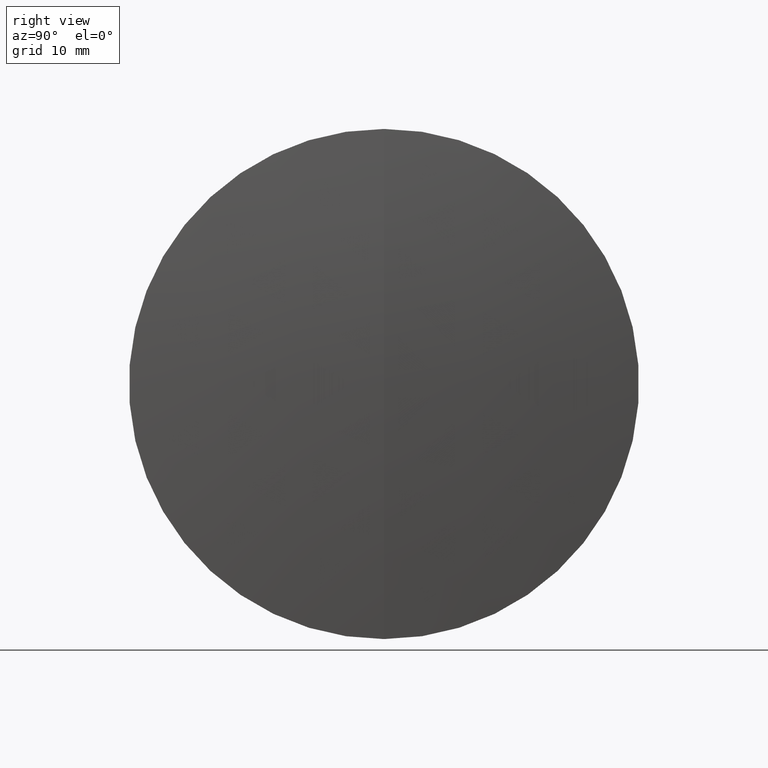
[diagram: clean part render]
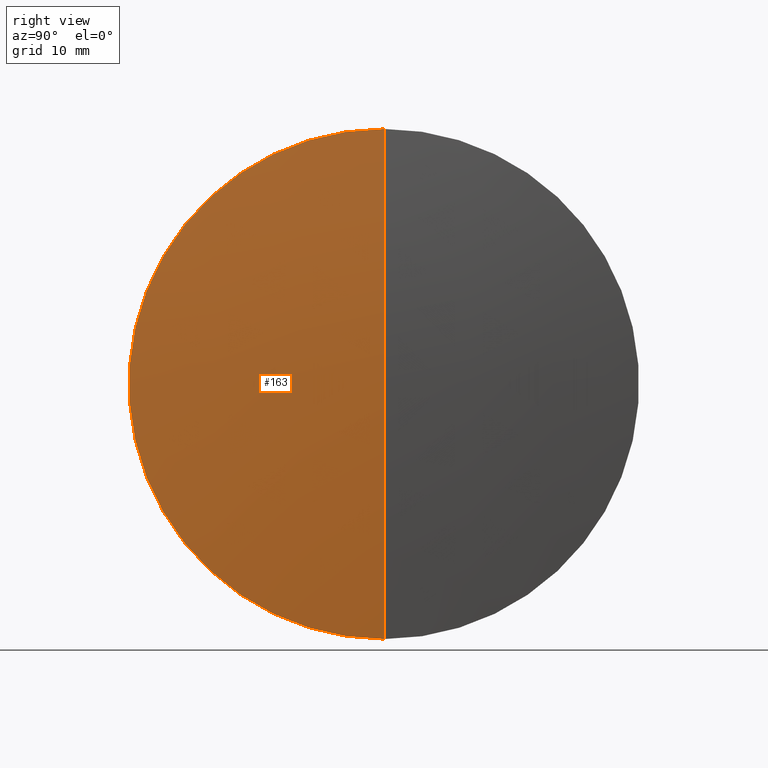
[diagram: same view with one face highlighted and labeled with its STEP entity id]
A machine part, right view. The second image highlights one B-rep face of the part: STEP entity #163.
In plain terms, the highlighted spherical surface has radius 226.241 mm.
Its self-contained STEP definition (entity closure, byte-faithful):
#20 = CIRCLE ( 'NONE', #294, 226.2409999999999900 ) ;
#22 = EDGE_CURVE ( 'NONE', #116, #274, #266, .T. ) ;
#24 = EDGE_LOOP ( 'NONE', ( #39, #34, #187 ) ) ;
#26 = DIRECTION ( 'NONE',  ( 0.0000000000000000000, 0.0000000000000000000, 1.000000000000000000 ) ) ;
#34 = ORIENTED_EDGE ( 'NONE', *, *, #343, .T. ) ;
#39 = ORIENTED_EDGE ( 'NONE', *, *, #22, .F. ) ;
#41 = CARTESIAN_POINT ( 'NONE',  ( 239.5147151953938500, 0.0000000000000000000, 1.385326582429481700E-014 ) ) ;
#45 = FACE_OUTER_BOUND ( 'NONE', #24, .T. ) ;
#71 = DIRECTION ( 'NONE',  ( 0.0000000000000000000, 0.0000000000000000000, -1.000000000000000000 ) ) ;
#79 = DIRECTION ( 'NONE',  ( 0.0000000000000000000, -1.000000000000000000, 0.0000000000000000000 ) ) ;
#83 = DIRECTION ( 'NONE',  ( 0.0000000000000000000, 1.000000000000000000, 0.0000000000000000000 ) ) ;
#99 = SPHERICAL_SURFACE ( 'NONE', #178, 226.2409999999999900 ) ;
#116 = VERTEX_POINT ( 'NONE', #41 ) ;
#118 = VERTEX_POINT ( 'NONE', #290 ) ;
#126 = AXIS2_PLACEMENT_3D ( 'NONE', #315, #208, #212 ) ;
#148 = CARTESIAN_POINT ( 'NONE',  ( 238.1292022998895300, 0.0000000000000000000, 0.0000000000000000000 ) ) ;
#163 = ADVANCED_FACE ( 'NONE', ( #45 ), #99, .T. ) ;
#178 = AXIS2_PLACEMENT_3D ( 'NONE', #314, #83, #26 ) ;
#187 = ORIENTED_EDGE ( 'NONE', *, *, #302, .F. ) ;
#195 = CARTESIAN_POINT ( 'NONE',  ( 13.27371519539385900, 0.0000000000000000000, 0.0000000000000000000 ) ) ;
#208 = DIRECTION ( 'NONE',  ( -0.0000000000000000000, 1.000000000000000000, 1.224646799147353200E-016 ) ) ;
#212 = DIRECTION ( 'NONE',  ( 0.0000000000000000000, -1.224646799147353200E-016, 1.000000000000000000 ) ) ;
#216 = DIRECTION ( 'NONE',  ( 0.0000000000000000000, 0.0000000000000000000, 1.000000000000000000 ) ) ;
#219 = CARTESIAN_POINT ( 'NONE',  ( 238.1292022998895300, 3.061616997868375200E-015, -24.99999999999992900 ) ) ;
#227 = AXIS2_PLACEMENT_3D ( 'NONE', #148, #235, #216 ) ;
#235 = DIRECTION ( 'NONE',  ( -1.000000000000000000, -0.0000000000000000000, -0.0000000000000000000 ) ) ;
#266 = CIRCLE ( 'NONE', #126, 226.2409999999999900 ) ;
#274 = VERTEX_POINT ( 'NONE', #219 ) ;
#290 = CARTESIAN_POINT ( 'NONE',  ( 238.1292022998895300, 0.0000000000000000000, 24.99999999999992900 ) ) ;
#294 = AXIS2_PLACEMENT_3D ( 'NONE', #195, #79, #71 ) ;
#302 = EDGE_CURVE ( 'NONE', #274, #118, #341, .T. ) ;
#314 = CARTESIAN_POINT ( 'NONE',  ( 13.27371519539385900, 0.0000000000000000000, 0.0000000000000000000 ) ) ;
#315 = CARTESIAN_POINT ( 'NONE',  ( 13.27371519539385900, 0.0000000000000000000, 0.0000000000000000000 ) ) ;
#341 = CIRCLE ( 'NONE', #227, 24.99999999999992900 ) ;
#343 = EDGE_CURVE ( 'NONE', #116, #118, #20, .T. ) ;